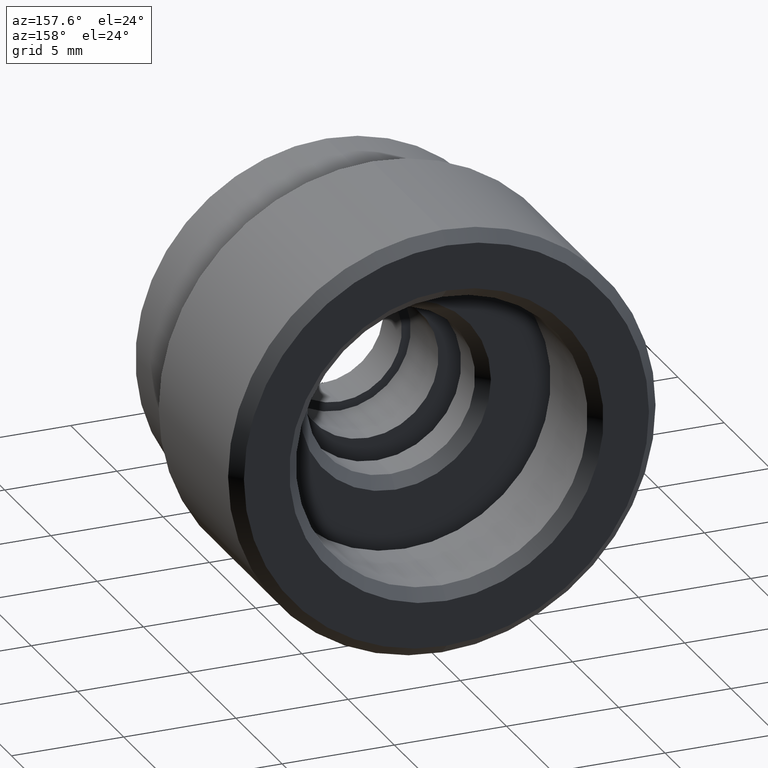
[diagram: clean part render]
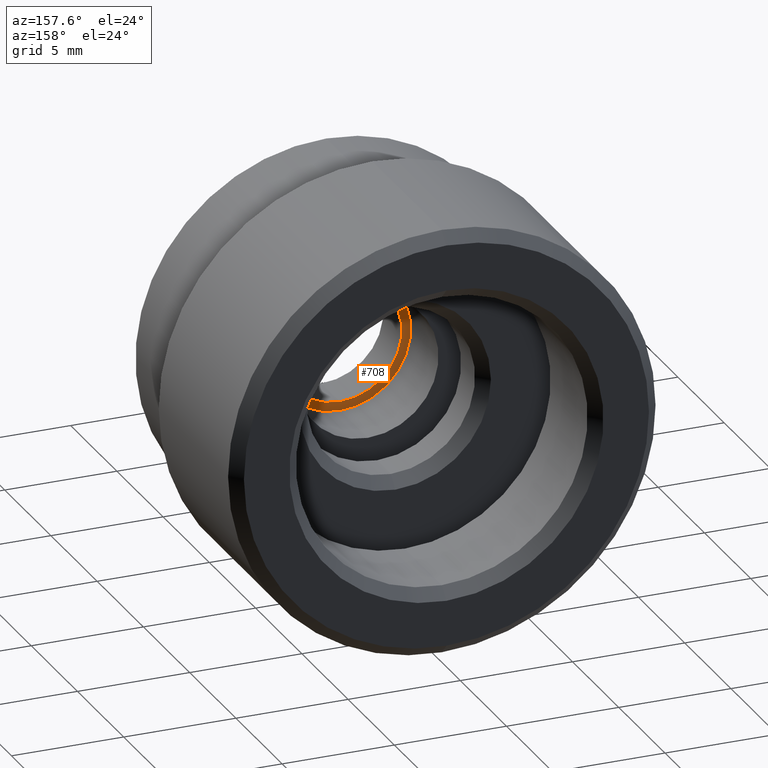
[diagram: same view with one face highlighted and labeled with its STEP entity id]
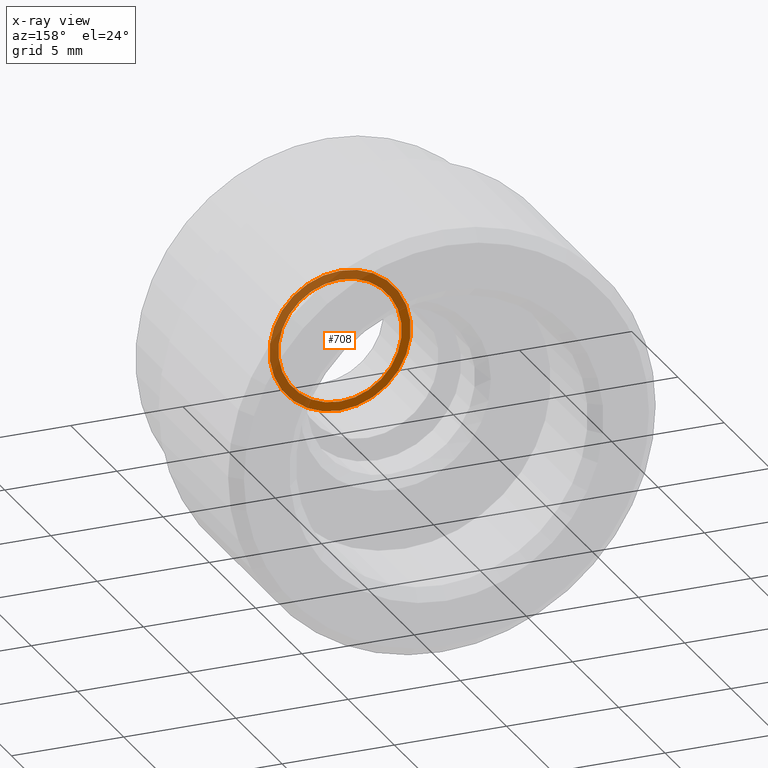
[diagram: x-ray of the same camera — body ghosted, the highlighted face saturated]
A machine part, auxiliary view. The second image highlights one B-rep face of the part: STEP entity #708.
The next image is the same camera in x-ray: the body ghosted, the highlighted face saturated — about 62% of this face is hidden behind the body in this view.
In plain terms, the highlighted planar face has unit normal (0, 1, 0).
Its self-contained STEP definition (entity closure, byte-faithful):
#101 = ORIENTED_EDGE ( 'NONE', *, *, #333, .F. ) ;
#104 = CIRCLE ( 'NONE', #132, 3.149999999999999900 ) ;
#132 = AXIS2_PLACEMENT_3D ( 'NONE', #1013, #498, #430 ) ;
#139 = CARTESIAN_POINT ( 'NONE',  ( 3.857637417314162700E-016, 2.000000000000000000, 3.149999999999999900 ) ) ;
#200 = EDGE_LOOP ( 'NONE', ( #875, #262 ) ) ;
#211 = PLANE ( 'NONE',  #884 ) ;
#222 = FACE_BOUND ( 'NONE', #200, .T. ) ;
#262 = ORIENTED_EDGE ( 'NONE', *, *, #840, .T. ) ;
#280 = VERTEX_POINT ( 'NONE', #861 ) ;
#298 = CARTESIAN_POINT ( 'NONE',  ( 2.750000000000000000, 2.000000000000000000, 0.0000000000000000000 ) ) ;
#304 = VERTEX_POINT ( 'NONE', #609 ) ;
#333 = EDGE_CURVE ( 'NONE', #784, #304, #740, .T. ) ;
#373 = DIRECTION ( 'NONE',  ( 0.0000000000000000000, 1.000000000000000000, 0.0000000000000000000 ) ) ;
#402 = ORIENTED_EDGE ( 'NONE', *, *, #667, .F. ) ;
#430 = DIRECTION ( 'NONE',  ( 0.0000000000000000000, 0.0000000000000000000, -1.000000000000000000 ) ) ;
#475 = DIRECTION ( 'NONE',  ( -0.0000000000000000000, -1.000000000000000000, -0.0000000000000000000 ) ) ;
#497 = DIRECTION ( 'NONE',  ( -0.0000000000000000000, -1.000000000000000000, -0.0000000000000000000 ) ) ;
#498 = DIRECTION ( 'NONE',  ( -0.0000000000000000000, -1.000000000000000000, -0.0000000000000000000 ) ) ;
#574 = CIRCLE ( 'NONE', #656, 2.750000000000000000 ) ;
#609 = CARTESIAN_POINT ( 'NONE',  ( 0.0000000000000000000, 2.000000000000000000, -3.149999999999999900 ) ) ;
#656 = AXIS2_PLACEMENT_3D ( 'NONE', #962, #475, #1053 ) ;
#667 = EDGE_CURVE ( 'NONE', #304, #784, #104, .T. ) ;
#701 = CARTESIAN_POINT ( 'NONE',  ( 0.0000000000000000000, 2.000000000000000000, 0.0000000000000000000 ) ) ;
#708 = ADVANCED_FACE ( 'NONE', ( #222, #969 ), #211, .T. ) ;
#711 = DIRECTION ( 'NONE',  ( 0.0000000000000000000, 0.0000000000000000000, -1.000000000000000000 ) ) ;
#740 = CIRCLE ( 'NONE', #879, 3.149999999999999900 ) ;
#784 = VERTEX_POINT ( 'NONE', #139 ) ;
#834 = AXIS2_PLACEMENT_3D ( 'NONE', #1041, #850, #711 ) ;
#840 = EDGE_CURVE ( 'NONE', #1087, #280, #1090, .T. ) ;
#850 = DIRECTION ( 'NONE',  ( -0.0000000000000000000, -1.000000000000000000, -0.0000000000000000000 ) ) ;
#856 = DIRECTION ( 'NONE',  ( 0.0000000000000000000, -0.0000000000000000000, 1.000000000000000000 ) ) ;
#861 = CARTESIAN_POINT ( 'NONE',  ( 0.0000000000000000000, 2.000000000000000000, -2.750000000000000000 ) ) ;
#875 = ORIENTED_EDGE ( 'NONE', *, *, #952, .T. ) ;
#879 = AXIS2_PLACEMENT_3D ( 'NONE', #701, #497, #934 ) ;
#884 = AXIS2_PLACEMENT_3D ( 'NONE', #298, #373, #856 ) ;
#905 = EDGE_LOOP ( 'NONE', ( #402, #101 ) ) ;
#934 = DIRECTION ( 'NONE',  ( 0.0000000000000000000, 0.0000000000000000000, -1.000000000000000000 ) ) ;
#952 = EDGE_CURVE ( 'NONE', #280, #1087, #574, .T. ) ;
#962 = CARTESIAN_POINT ( 'NONE',  ( 0.0000000000000000000, 2.000000000000000000, 0.0000000000000000000 ) ) ;
#969 = FACE_OUTER_BOUND ( 'NONE', #905, .T. ) ;
#1013 = CARTESIAN_POINT ( 'NONE',  ( 0.0000000000000000000, 2.000000000000000000, 0.0000000000000000000 ) ) ;
#1032 = CARTESIAN_POINT ( 'NONE',  ( 3.367778697655221000E-016, 2.000000000000000000, 2.750000000000000000 ) ) ;
#1041 = CARTESIAN_POINT ( 'NONE',  ( 0.0000000000000000000, 2.000000000000000000, 0.0000000000000000000 ) ) ;
#1053 = DIRECTION ( 'NONE',  ( 0.0000000000000000000, 0.0000000000000000000, -1.000000000000000000 ) ) ;
#1087 = VERTEX_POINT ( 'NONE', #1032 ) ;
#1090 = CIRCLE ( 'NONE', #834, 2.750000000000000000 ) ;